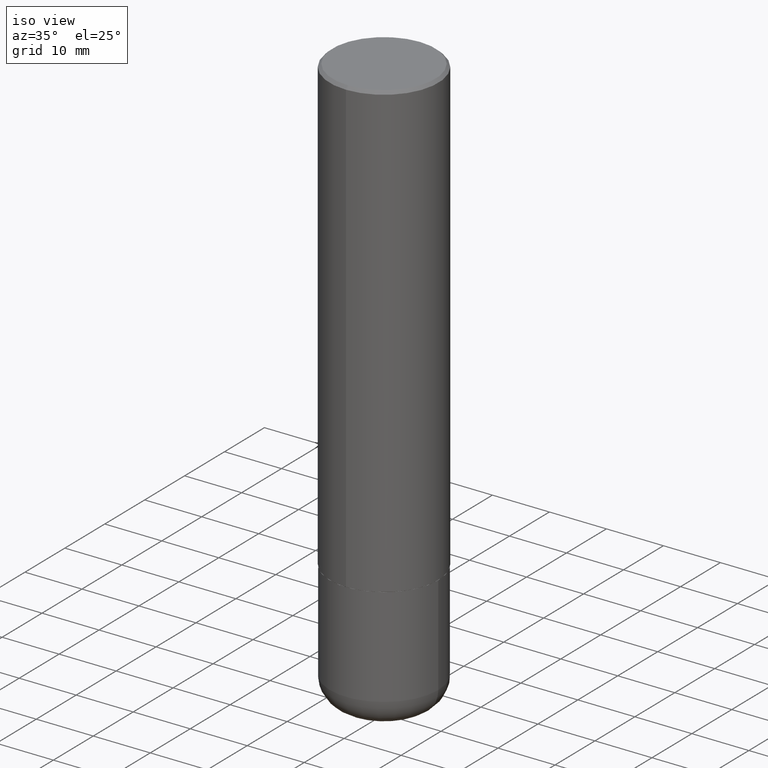
[diagram: clean part render]
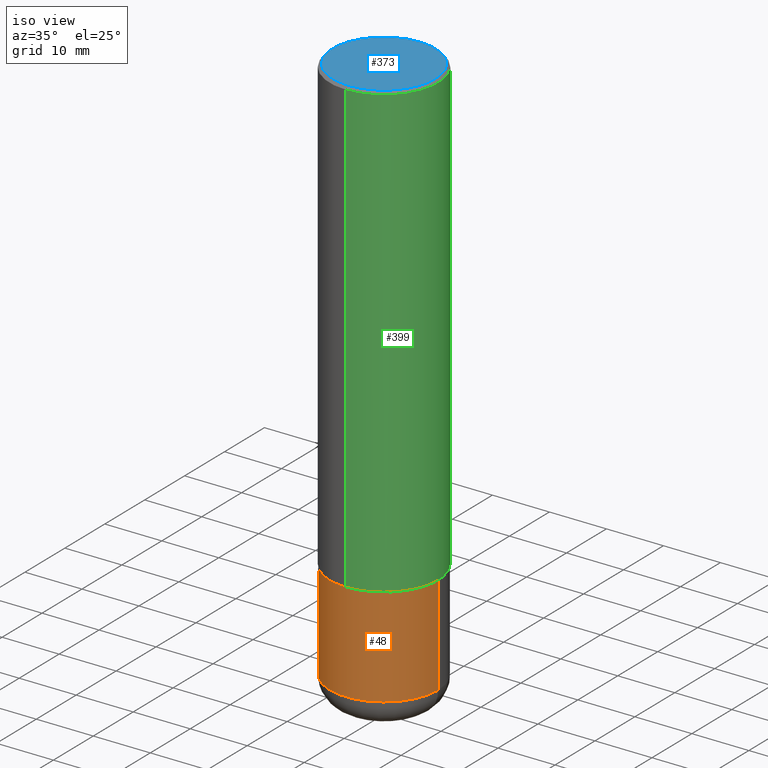
[diagram: same view with three faces highlighted in distinct colors, each labeled with its STEP entity id]
A machine part, iso view with three faces highlighted in distinct colors.
Their STEP definitions:

[orange] entity #48 — the highlighted cylindrical surface (partial cylindrical patch) has radius 9.525 mm, axis along (-0, 0, 1).
#8 = DIRECTION ( 'NONE',  ( -2.445468806185136597E-29, 3.491481338843145583E-15, 1.000000000000000000 ) ) ;
#33 = CIRCLE ( 'NONE', #271, 0.3750000000000000555 ) ;
#48 = ADVANCED_FACE ( 'NONE', ( #229 ), #93, .T. ) ;
#56 = CARTESIAN_POINT ( 'NONE',  ( 7.642090019328551865E-29, -1.091087918388483118E-14, -3.125000000000000000 ) ) ;
#63 = DIRECTION ( 'NONE',  ( -2.445468806185136877E-29, 3.491481338843145188E-15, 1.000000000000000000 ) ) ;
#67 = LINE ( 'NONE', #124, #183 ) ;
#93 = CYLINDRICAL_SURFACE ( 'NONE', #327, 0.3750000000000001110 ) ;
#96 = VERTEX_POINT ( 'NONE', #115 ) ;
#100 = ORIENTED_EDGE ( 'NONE', *, *, #334, .F. ) ;
#105 = DIRECTION ( 'NONE',  ( 1.000000000000000000, -6.982962677686266711E-15, 0.000000000000000000 ) ) ;
#109 = ORIENTED_EDGE ( 'NONE', *, *, #258, .F. ) ;
#115 = CARTESIAN_POINT ( 'NONE',  ( 0.3750000000000000555, -1.592115490512473417E-14, -3.810000000000000053 ) ) ;
#124 = CARTESIAN_POINT ( 'NONE',  ( 0.3750000000000001110, -2.618611004132350411E-15, 1.828566290923476483E-29 ) ) ;
#137 = VERTEX_POINT ( 'NONE', #177 ) ;
#138 = DIRECTION ( 'NONE',  ( 1.000000000000000000, -6.982962677686265922E-15, 4.876176775795935793E-29 ) ) ;
#147 = CARTESIAN_POINT ( 'NONE',  ( -0.3750000000000000555, -1.063800864189200846E-14, -3.810000000000000053 ) ) ;
#177 = CARTESIAN_POINT ( 'NONE',  ( 0.3750000000000000555, -1.352949018801718119E-14, -3.125000000000000000 ) ) ;
#183 = VECTOR ( 'NONE', #63, 39.37007874015748143 ) ;
#194 = EDGE_CURVE ( 'NONE', #96, #137, #67, .T. ) ;
#195 = DIRECTION ( 'NONE',  ( -2.445468806185136877E-29, 3.491481338843145188E-15, 1.000000000000000000 ) ) ;
#205 = EDGE_CURVE ( 'NONE', #213, #96, #222, .T. ) ;
#213 = VERTEX_POINT ( 'NONE', #147 ) ;
#222 = CIRCLE ( 'NONE', #402, 0.3750000000000001110 ) ;
#229 = FACE_OUTER_BOUND ( 'NONE', #405, .T. ) ;
#234 = VERTEX_POINT ( 'NONE', #318 ) ;
#243 = DIRECTION ( 'NONE',  ( 1.000000000000000000, -6.982962677686265922E-15, 0.000000000000000000 ) ) ;
#258 = EDGE_CURVE ( 'NONE', #234, #137, #33, .T. ) ;
#269 = ORIENTED_EDGE ( 'NONE', *, *, #194, .T. ) ;
#271 = AXIS2_PLACEMENT_3D ( 'NONE', #56, #307, #105 ) ;
#284 = ORIENTED_EDGE ( 'NONE', *, *, #205, .T. ) ;
#293 = CARTESIAN_POINT ( 'NONE',  ( -0.3750000000000001110, 2.664535259100376486E-15, -1.844600658845590159E-29 ) ) ;
#307 = DIRECTION ( 'NONE',  ( -2.445468806185136597E-29, 3.491481338843145583E-15, 1.000000000000000000 ) ) ;
#309 = DIRECTION ( 'NONE',  ( -2.445468806185136597E-29, 3.491481338843145583E-15, 1.000000000000000000 ) ) ;
#317 = VECTOR ( 'NONE', #195, 39.37007874015748143 ) ;
#318 = CARTESIAN_POINT ( 'NONE',  ( -0.3750000000000000555, -9.442176283338231969E-15, -3.125000000000000000 ) ) ;
#327 = AXIS2_PLACEMENT_3D ( 'NONE', #368, #8, #138 ) ;
#329 = LINE ( 'NONE', #293, #317 ) ;
#334 = EDGE_CURVE ( 'NONE', #213, #234, #329, .T. ) ;
#368 = CARTESIAN_POINT ( 'NONE',  ( 0.000000000000000000, 0.000000000000000000, 0.000000000000000000 ) ) ;
#402 = AXIS2_PLACEMENT_3D ( 'NONE', #409, #309, #243 ) ;
#405 = EDGE_LOOP ( 'NONE', ( #100, #284, #269, #109 ) ) ;
#409 = CARTESIAN_POINT ( 'NONE',  ( 9.317236151565370389E-29, -1.330254390099238573E-14, -3.810000000000000053 ) ) ;

[blue] entity #373 — the highlighted planar face has unit normal (0, -0, -1).
#17 = DIRECTION ( 'NONE',  ( -2.445996322747269804E-29, 3.490725905101792415E-15, 1.000000000000000000 ) ) ;
#41 = DIRECTION ( 'NONE',  ( 2.445996322747270084E-29, -3.490725905101792021E-15, -1.000000000000000000 ) ) ;
#47 = DIRECTION ( 'NONE',  ( -2.445996322747269804E-29, 3.490725905101792415E-15, 1.000000000000000000 ) ) ;
#66 = CARTESIAN_POINT ( 'NONE',  ( -2.504081769186606638E-15, -0.3549999999999995381, 1.580420516540987376E-15 ) ) ;
#82 = EDGE_CURVE ( 'NONE', #400, #312, #414, .T. ) ;
#99 = AXIS2_PLACEMENT_3D ( 'NONE', #302, #17, #264 ) ;
#127 = EDGE_CURVE ( 'NONE', #312, #400, #300, .T. ) ;
#163 = DIRECTION ( 'NONE',  ( 6.982962677686265922E-15, 1.000000000000000000, -3.490725905101792021E-15 ) ) ;
#167 = FACE_OUTER_BOUND ( 'NONE', #190, .T. ) ;
#190 = EDGE_LOOP ( 'NONE', ( #228, #355 ) ) ;
#228 = ORIENTED_EDGE ( 'NONE', *, *, #127, .T. ) ;
#230 = AXIS2_PLACEMENT_3D ( 'NONE', #363, #41, #163 ) ;
#260 = AXIS2_PLACEMENT_3D ( 'NONE', #333, #47, #398 ) ;
#264 = DIRECTION ( 'NONE',  ( -6.982962677686266711E-15, -1.000000000000000000, 3.490725905101792415E-15 ) ) ;
#300 = CIRCLE ( 'NONE', #99, 0.3549999999999995381 ) ;
#302 = CARTESIAN_POINT ( 'NONE',  ( -8.346053035564447328E-45, 1.191080430729187510E-30, 3.412128202298525830E-16 ) ) ;
#312 = VERTEX_POINT ( 'NONE', #389 ) ;
#333 = CARTESIAN_POINT ( 'NONE',  ( -8.346053035564447328E-45, 1.191080430729187510E-30, 3.412128202298525830E-16 ) ) ;
#355 = ORIENTED_EDGE ( 'NONE', *, *, #82, .T. ) ;
#357 = PLANE ( 'NONE',  #230 ) ;
#363 = CARTESIAN_POINT ( 'NONE',  ( 2.478951750578621448E-15, 0.3549999999999995381, -1.068601286196208575E-15 ) ) ;
#373 = ADVANCED_FACE ( 'NONE', ( #167 ), #357, .F. ) ;
#389 = CARTESIAN_POINT ( 'NONE',  ( 2.548781377355485929E-15, 0.3549999999999995381, -8.979948760812821111E-16 ) ) ;
#398 = DIRECTION ( 'NONE',  ( -6.982962677686266711E-15, -1.000000000000000000, 3.490725905101792415E-15 ) ) ;
#400 = VERTEX_POINT ( 'NONE', #66 ) ;
#414 = CIRCLE ( 'NONE', #260, 0.3549999999999995381 ) ;

[green] entity #399 — the highlighted cylindrical surface (partial cylindrical patch) has radius 9.525 mm, axis along (-0, 0, 1).
#28 = VERTEX_POINT ( 'NONE', #86 ) ;
#43 = AXIS2_PLACEMENT_3D ( 'NONE', #387, #239, #189 ) ;
#44 = AXIS2_PLACEMENT_3D ( 'NONE', #118, #218, #376 ) ;
#58 = CARTESIAN_POINT ( 'NONE',  ( 2.664535259100376486E-15, 0.3750000000000001665, -1.309022214413172797E-15 ) ) ;
#71 = CYLINDRICAL_SURFACE ( 'NONE', #142, 0.3750000000000001665 ) ;
#86 = CARTESIAN_POINT ( 'NONE',  ( 2.618611004132350016E-15, 0.3749999999999998890, -0.02000000000000139513 ) ) ;
#90 = CARTESIAN_POINT ( 'NONE',  ( -2.618611004132351200E-15, -0.3750000000000001665, 1.309022214413172797E-15 ) ) ;
#91 = ORIENTED_EDGE ( 'NONE', *, *, #281, .F. ) ;
#92 = DIRECTION ( 'NONE',  ( -6.982962677686266711E-15, -1.000000000000000000, 3.490725905101792415E-15 ) ) ;
#95 = CARTESIAN_POINT ( 'NONE',  ( 2.664535259100415534E-15, 0.3749999999999894529, -3.124000000000001442 ) ) ;
#107 = FACE_OUTER_BOUND ( 'NONE', #310, .T. ) ;
#118 = CARTESIAN_POINT ( 'NONE',  ( 4.891992645494561398E-31, -6.981451810203614264E-17, -0.02000000000000008715 ) ) ;
#125 = ORIENTED_EDGE ( 'NONE', *, *, #211, .T. ) ;
#133 = EDGE_CURVE ( 'NONE', #369, #208, #371, .T. ) ;
#142 = AXIS2_PLACEMENT_3D ( 'NONE', #285, #279, #92 ) ;
#185 = DIRECTION ( 'NONE',  ( -2.445996322747270084E-29, 3.490725905101792021E-15, 1.000000000000000000 ) ) ;
#189 = DIRECTION ( 'NONE',  ( -6.982962677686265922E-15, -1.000000000000000000, 2.913971193241877611E-15 ) ) ;
#193 = ORIENTED_EDGE ( 'NONE', *, *, #133, .F. ) ;
#202 = ORIENTED_EDGE ( 'NONE', *, *, #286, .T. ) ;
#207 = DIRECTION ( 'NONE',  ( -2.445996322747270084E-29, 3.490725905101792021E-15, 1.000000000000000000 ) ) ;
#208 = VERTEX_POINT ( 'NONE', #418 ) ;
#211 = EDGE_CURVE ( 'NONE', #369, #244, #221, .T. ) ;
#218 = DIRECTION ( 'NONE',  ( -2.445996322747269804E-29, 3.490725905101792415E-15, 1.000000000000000000 ) ) ;
#221 = CIRCLE ( 'NONE', #43, 0.3750000000000003886 ) ;
#239 = DIRECTION ( 'NONE',  ( -2.445996322747269804E-29, 3.490725905101792415E-15, 1.000000000000000000 ) ) ;
#244 = VERTEX_POINT ( 'NONE', #95 ) ;
#256 = CIRCLE ( 'NONE', #44, 0.3749999999999999445 ) ;
#279 = DIRECTION ( 'NONE',  ( -2.445996322747269804E-29, 3.490725905101792415E-15, 1.000000000000000000 ) ) ;
#281 = EDGE_CURVE ( 'NONE', #208, #28, #256, .T. ) ;
#285 = CARTESIAN_POINT ( 'NONE',  ( 0.000000000000000000, 0.000000000000000000, 0.000000000000000000 ) ) ;
#286 = EDGE_CURVE ( 'NONE', #244, #28, #345, .T. ) ;
#289 = VECTOR ( 'NONE', #185, 39.37007874015748143 ) ;
#296 = VECTOR ( 'NONE', #207, 39.37007874015748143 ) ;
#310 = EDGE_LOOP ( 'NONE', ( #125, #202, #91, #193 ) ) ;
#345 = LINE ( 'NONE', #58, #289 ) ;
#354 = CARTESIAN_POINT ( 'NONE',  ( -2.618611004132276258E-15, -0.3750000000000113243, -3.123999999999999222 ) ) ;
#369 = VERTEX_POINT ( 'NONE', #354 ) ;
#371 = LINE ( 'NONE', #90, #296 ) ;
#376 = DIRECTION ( 'NONE',  ( -6.982962677686266711E-15, -1.000000000000000000, 3.494488891895537218E-15 ) ) ;
#387 = CARTESIAN_POINT ( 'NONE',  ( 7.641292512262471991E-29, -1.090502772753799986E-14, -3.124000000000000554 ) ) ;
#399 = ADVANCED_FACE ( 'NONE', ( #107 ), #71, .T. ) ;
#418 = CARTESIAN_POINT ( 'NONE',  ( -2.572686749164323153E-15, -0.3750000000000000555, -0.01999999999999877570 ) ) ;